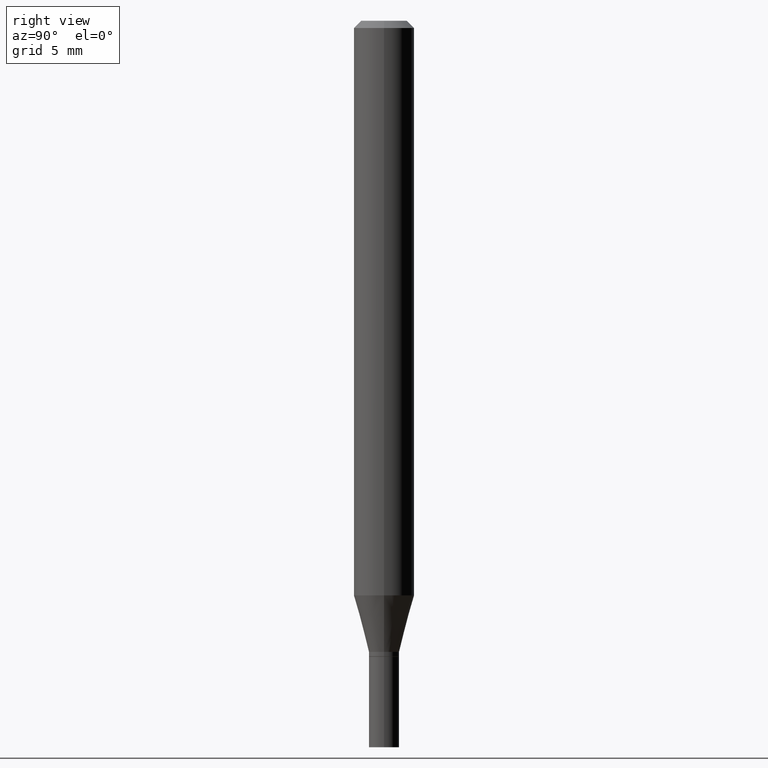
[diagram: clean part render]
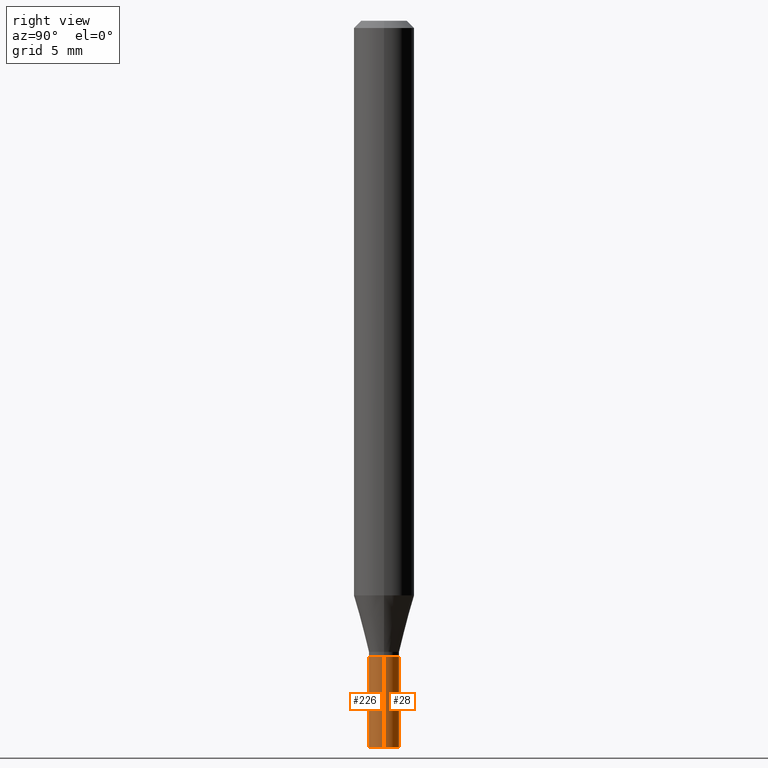
[diagram: same view with one multi-face feature highlighted, each face labeled with its STEP entity id]
A machine part, right view. The highlighted faces form ONE feature: a constant-radius fillet chain: 2 tangent blend faces with common blend radius 0.7938 mm. The faces share edges in the B-rep.
Their STEP definitions:
[1] entity #28 (Cylinder):
#1 = VERTEX_POINT ( 'NONE', #331 ) ;
#14 = CARTESIAN_POINT ( 'NONE',  ( -0.03125000000000000694, -4.688723898157853868E-15, -1.500000000000000222 ) ) ;
#25 = DIRECTION ( 'NONE',  ( 1.000000000000000000, -6.982962677686261189E-15, 0.000000000000000000 ) ) ;
#28 = ADVANCED_FACE ( 'NONE', ( #404 ), #213, .T. ) ;
#57 = EDGE_CURVE ( 'NONE', #65, #1, #301, .T. ) ;
#65 = VERTEX_POINT ( 'NONE', #14 ) ;
#66 = EDGE_CURVE ( 'NONE', #168, #235, #440, .T. ) ;
#82 = AXIS2_PLACEMENT_3D ( 'NONE', #171, #276, #25 ) ;
#83 = DIRECTION ( 'NONE',  ( -2.445468806185136877E-29, 3.491481338843145188E-15, 1.000000000000000000 ) ) ;
#93 = DIRECTION ( 'NONE',  ( 1.000000000000000000, -6.982962677686261189E-15, 0.000000000000000000 ) ) ;
#109 = EDGE_LOOP ( 'NONE', ( #164, #353, #310, #210 ) ) ;
#115 = CARTESIAN_POINT ( 'NONE',  ( 0.03125000000000000694, -5.455439591942414011E-15, -1.500000000000000222 ) ) ;
#120 = CARTESIAN_POINT ( 'NONE',  ( 0.03125000000000000694, -2.182175836776959087E-16, 1.523805242436230286E-30 ) ) ;
#143 = DIRECTION ( 'NONE',  ( -2.445468806185136597E-29, 3.491481338843145583E-15, 1.000000000000000000 ) ) ;
#164 = ORIENTED_EDGE ( 'NONE', *, *, #393, .T. ) ;
#168 = VERTEX_POINT ( 'NONE', #115 ) ;
#171 = CARTESIAN_POINT ( 'NONE',  ( 3.668203209277704895E-29, -5.237222008264718177E-15, -1.500000000000000222 ) ) ;
#185 = CARTESIAN_POINT ( 'NONE',  ( 0.03125000000000000694, -4.802532581578746433E-15, -1.313000000000000167 ) ) ;
#192 = CARTESIAN_POINT ( 'NONE',  ( -0.03125000000000000694, 2.220446049250313574E-16, -1.537167215704658582E-30 ) ) ;
#200 = VECTOR ( 'NONE', #439, 39.37007874015748143 ) ;
#204 = DIRECTION ( 'NONE',  ( -2.445468806185136597E-29, 3.491481338843145583E-15, 1.000000000000000000 ) ) ;
#210 = ORIENTED_EDGE ( 'NONE', *, *, #66, .F. ) ;
#213 = CYLINDRICAL_SURFACE ( 'NONE', #264, 0.03125000000000000694 ) ;
#235 = VERTEX_POINT ( 'NONE', #185 ) ;
#264 = AXIS2_PLACEMENT_3D ( 'NONE', #356, #143, #285 ) ;
#275 = EDGE_CURVE ( 'NONE', #235, #1, #304, .T. ) ;
#276 = DIRECTION ( 'NONE',  ( -2.445468806185136597E-29, 3.491481338843145583E-15, 1.000000000000000000 ) ) ;
#285 = DIRECTION ( 'NONE',  ( 1.000000000000000000, -6.982962677686267499E-15, 4.876176775795935793E-29 ) ) ;
#298 = CIRCLE ( 'NONE', #82, 0.03125000000000000694 ) ;
#301 = LINE ( 'NONE', #192, #200 ) ;
#304 = CIRCLE ( 'NONE', #392, 0.03125000000000000694 ) ;
#310 = ORIENTED_EDGE ( 'NONE', *, *, #275, .F. ) ;
#331 = CARTESIAN_POINT ( 'NONE',  ( -0.03125000000000000694, -4.688723898157853868E-15, -1.313000000000000167 ) ) ;
#353 = ORIENTED_EDGE ( 'NONE', *, *, #57, .T. ) ;
#356 = CARTESIAN_POINT ( 'NONE',  ( 0.000000000000000000, 0.000000000000000000, 0.000000000000000000 ) ) ;
#381 = CARTESIAN_POINT ( 'NONE',  ( 3.210900542521084585E-29, -4.584314997901050598E-15, -1.313000000000000167 ) ) ;
#392 = AXIS2_PLACEMENT_3D ( 'NONE', #381, #204, #93 ) ;
#393 = EDGE_CURVE ( 'NONE', #168, #65, #298, .T. ) ;
#404 = FACE_OUTER_BOUND ( 'NONE', #109, .T. ) ;
#439 = DIRECTION ( 'NONE',  ( -2.445468806185136877E-29, 3.491481338843145188E-15, 1.000000000000000000 ) ) ;
#440 = LINE ( 'NONE', #120, #448 ) ;
#448 = VECTOR ( 'NONE', #83, 39.37007874015748143 ) ;
[2] entity #226 (Cylinder):
#1 = VERTEX_POINT ( 'NONE', #331 ) ;
#3 = DIRECTION ( 'NONE',  ( 1.000000000000000000, -6.982962677686261189E-15, 0.000000000000000000 ) ) ;
#10 = DIRECTION ( 'NONE',  ( -2.445468806185136597E-29, 3.491481338843145583E-15, 1.000000000000000000 ) ) ;
#12 = AXIS2_PLACEMENT_3D ( 'NONE', #229, #10, #403 ) ;
#14 = CARTESIAN_POINT ( 'NONE',  ( -0.03125000000000000694, -4.688723898157853868E-15, -1.500000000000000222 ) ) ;
#22 = AXIS2_PLACEMENT_3D ( 'NONE', #38, #363, #3 ) ;
#38 = CARTESIAN_POINT ( 'NONE',  ( 3.668203209277704895E-29, -5.237222008264718177E-15, -1.500000000000000222 ) ) ;
#46 = CIRCLE ( 'NONE', #51, 0.03125000000000000694 ) ;
#50 = ORIENTED_EDGE ( 'NONE', *, *, #318, .T. ) ;
#51 = AXIS2_PLACEMENT_3D ( 'NONE', #69, #422, #209 ) ;
#57 = EDGE_CURVE ( 'NONE', #65, #1, #301, .T. ) ;
#65 = VERTEX_POINT ( 'NONE', #14 ) ;
#66 = EDGE_CURVE ( 'NONE', #168, #235, #440, .T. ) ;
#69 = CARTESIAN_POINT ( 'NONE',  ( 3.210900542521084585E-29, -4.584314997901050598E-15, -1.313000000000000167 ) ) ;
#72 = FACE_OUTER_BOUND ( 'NONE', #165, .T. ) ;
#77 = ORIENTED_EDGE ( 'NONE', *, *, #198, .F. ) ;
#83 = DIRECTION ( 'NONE',  ( -2.445468806185136877E-29, 3.491481338843145188E-15, 1.000000000000000000 ) ) ;
#96 = CIRCLE ( 'NONE', #22, 0.03125000000000000694 ) ;
#100 = ORIENTED_EDGE ( 'NONE', *, *, #66, .T. ) ;
#115 = CARTESIAN_POINT ( 'NONE',  ( 0.03125000000000000694, -5.455439591942414011E-15, -1.500000000000000222 ) ) ;
#120 = CARTESIAN_POINT ( 'NONE',  ( 0.03125000000000000694, -2.182175836776959087E-16, 1.523805242436230286E-30 ) ) ;
#133 = ORIENTED_EDGE ( 'NONE', *, *, #57, .F. ) ;
#165 = EDGE_LOOP ( 'NONE', ( #133, #50, #100, #77 ) ) ;
#168 = VERTEX_POINT ( 'NONE', #115 ) ;
#185 = CARTESIAN_POINT ( 'NONE',  ( 0.03125000000000000694, -4.802532581578746433E-15, -1.313000000000000167 ) ) ;
#192 = CARTESIAN_POINT ( 'NONE',  ( -0.03125000000000000694, 2.220446049250313574E-16, -1.537167215704658582E-30 ) ) ;
#198 = EDGE_CURVE ( 'NONE', #1, #235, #46, .T. ) ;
#200 = VECTOR ( 'NONE', #439, 39.37007874015748143 ) ;
#209 = DIRECTION ( 'NONE',  ( 1.000000000000000000, -6.982962677686261189E-15, 0.000000000000000000 ) ) ;
#226 = ADVANCED_FACE ( 'NONE', ( #72 ), #454, .T. ) ;
#229 = CARTESIAN_POINT ( 'NONE',  ( 0.000000000000000000, 0.000000000000000000, 0.000000000000000000 ) ) ;
#235 = VERTEX_POINT ( 'NONE', #185 ) ;
#301 = LINE ( 'NONE', #192, #200 ) ;
#318 = EDGE_CURVE ( 'NONE', #65, #168, #96, .T. ) ;
#331 = CARTESIAN_POINT ( 'NONE',  ( -0.03125000000000000694, -4.688723898157853868E-15, -1.313000000000000167 ) ) ;
#363 = DIRECTION ( 'NONE',  ( -2.445468806185136597E-29, 3.491481338843145583E-15, 1.000000000000000000 ) ) ;
#403 = DIRECTION ( 'NONE',  ( 1.000000000000000000, -6.982962677686267499E-15, 4.876176775795935793E-29 ) ) ;
#422 = DIRECTION ( 'NONE',  ( -2.445468806185136597E-29, 3.491481338843145583E-15, 1.000000000000000000 ) ) ;
#439 = DIRECTION ( 'NONE',  ( -2.445468806185136877E-29, 3.491481338843145188E-15, 1.000000000000000000 ) ) ;
#440 = LINE ( 'NONE', #120, #448 ) ;
#448 = VECTOR ( 'NONE', #83, 39.37007874015748143 ) ;
#454 = CYLINDRICAL_SURFACE ( 'NONE', #12, 0.03125000000000000694 ) ;